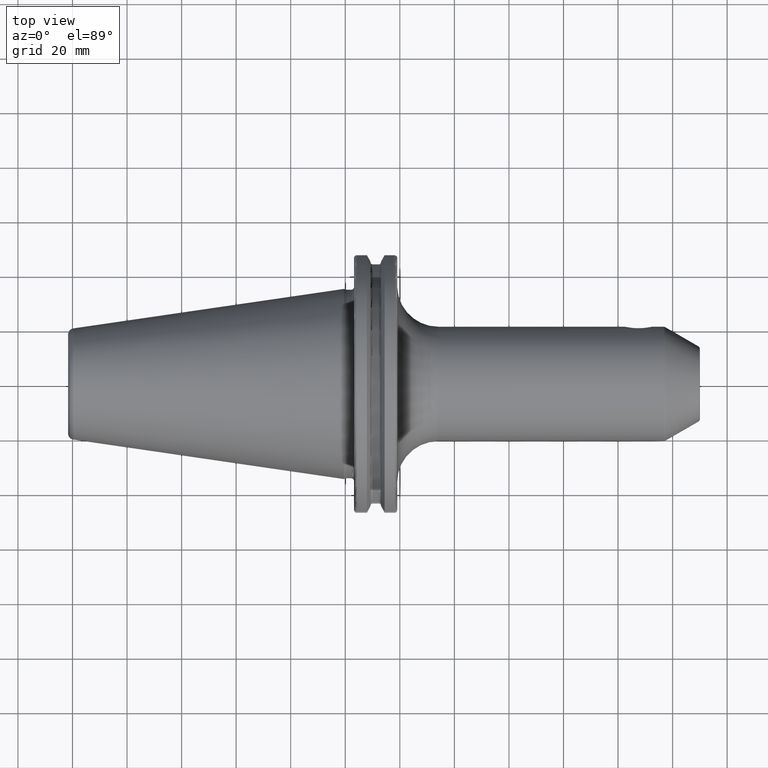
[diagram: clean part render]
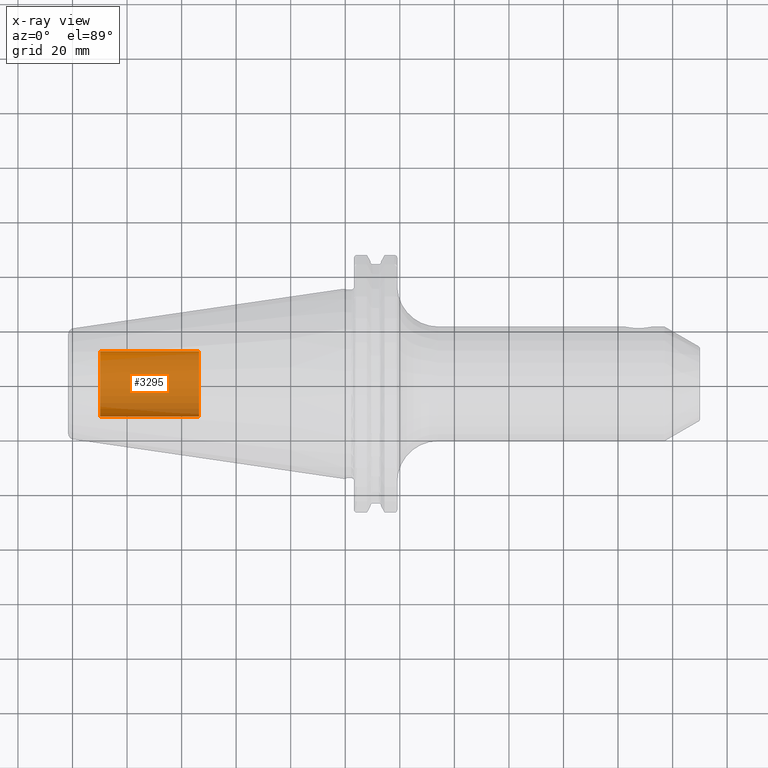
[diagram: x-ray — body ghosted, one internal face saturated and labeled with its STEP entity id]
A machine part, top view, then the same camera in x-ray: the body is ghosted and one INTERNAL B-rep face — a face not visible from any outside direction — is saturated and labeled: STEP entity #3295.
In plain terms, the highlighted cylindrical surface (edge-blend (fillet) strip) has radius 12.0032 mm, axis along (1, 0, 0).
Its self-contained STEP definition (entity closure, byte-faithful):
#3230=CARTESIAN_POINT('',(-8.985E1,0.E0,0.E0));
#3231=DIRECTION('',(-1.E0,0.E0,0.E0));
#3232=DIRECTION('',(0.E0,1.E0,0.E0));
#3233=AXIS2_PLACEMENT_3D('',#3230,#3231,#3232);
#3235=DIRECTION('',(1.E0,0.E0,0.E0));
#3236=VECTOR('',#3235,3.625E1);
#3237=CARTESIAN_POINT('',(-8.985E1,-1.200325E1,0.E0));
#3238=LINE('',#3237,#3236);
#3244=DIRECTION('',(1.E0,0.E0,0.E0));
#3245=VECTOR('',#3244,3.625E1);
#3246=CARTESIAN_POINT('',(-8.985E1,1.200325E1,0.E0));
#3247=LINE('',#3246,#3245);
#3253=CARTESIAN_POINT('',(-5.36E1,0.E0,0.E0));
#3254=DIRECTION('',(1.E0,0.E0,0.E0));
#3255=DIRECTION('',(0.E0,-1.E0,0.E0));
#3256=AXIS2_PLACEMENT_3D('',#3253,#3254,#3255);
#3268=CARTESIAN_POINT('',(-8.985E1,1.200325E1,0.E0));
#3269=CARTESIAN_POINT('',(-8.985E1,-1.200325E1,0.E0));
#3270=VERTEX_POINT('',#3268);
#3271=VERTEX_POINT('',#3269);
#3272=CARTESIAN_POINT('',(-5.36E1,1.200325E1,0.E0));
#3273=CARTESIAN_POINT('',(-5.36E1,-1.200325E1,0.E0));
#3274=VERTEX_POINT('',#3272);
#3275=VERTEX_POINT('',#3273);
#3280=CARTESIAN_POINT('',(-8.985E1,0.E0,0.E0));
#3281=DIRECTION('',(1.E0,0.E0,0.E0));
#3282=DIRECTION('',(0.E0,1.E0,0.E0));
#3283=AXIS2_PLACEMENT_3D('',#3280,#3281,#3282);
#3284=CYLINDRICAL_SURFACE('',#3283,1.200325E1);
#3286=ORIENTED_EDGE('',*,*,#3285,.T.);
#3288=ORIENTED_EDGE('',*,*,#3287,.T.);
#3290=ORIENTED_EDGE('',*,*,#3289,.T.);
#3292=ORIENTED_EDGE('',*,*,#3291,.F.);
#3293=EDGE_LOOP('',(#3286,#3288,#3290,#3292));
#3294=FACE_OUTER_BOUND('',#3293,.F.);
#3295=ADVANCED_FACE('',(#3294),#3284,.T.);
#3234=CIRCLE('',#3233,1.200325E1);
#3257=CIRCLE('',#3256,1.200325E1);
#3285=EDGE_CURVE('',#3270,#3271,#3234,.T.);
#3287=EDGE_CURVE('',#3271,#3275,#3238,.T.);
#3289=EDGE_CURVE('',#3275,#3274,#3257,.T.);
#3291=EDGE_CURVE('',#3270,#3274,#3247,.T.);